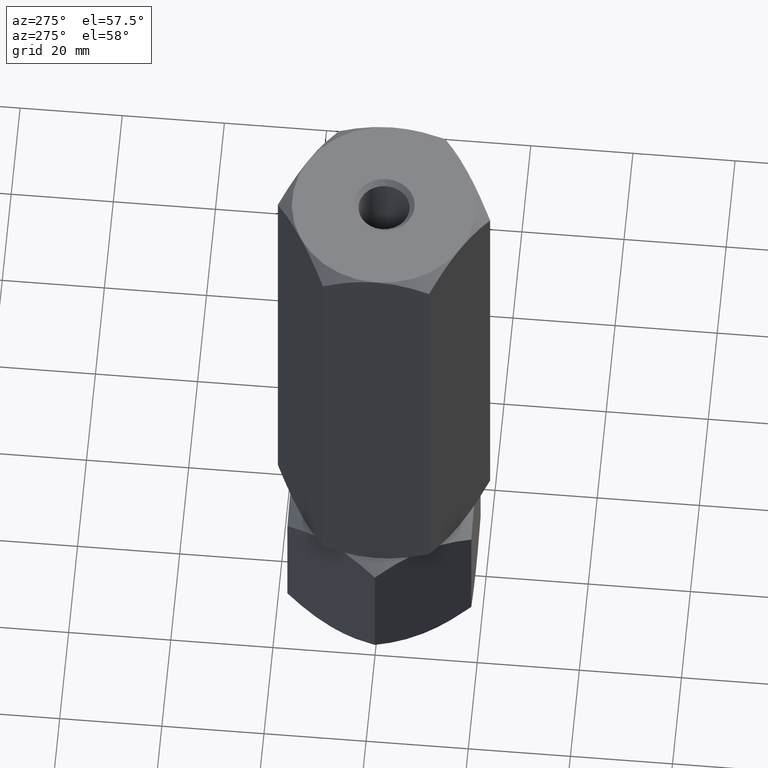
[diagram: clean part render]
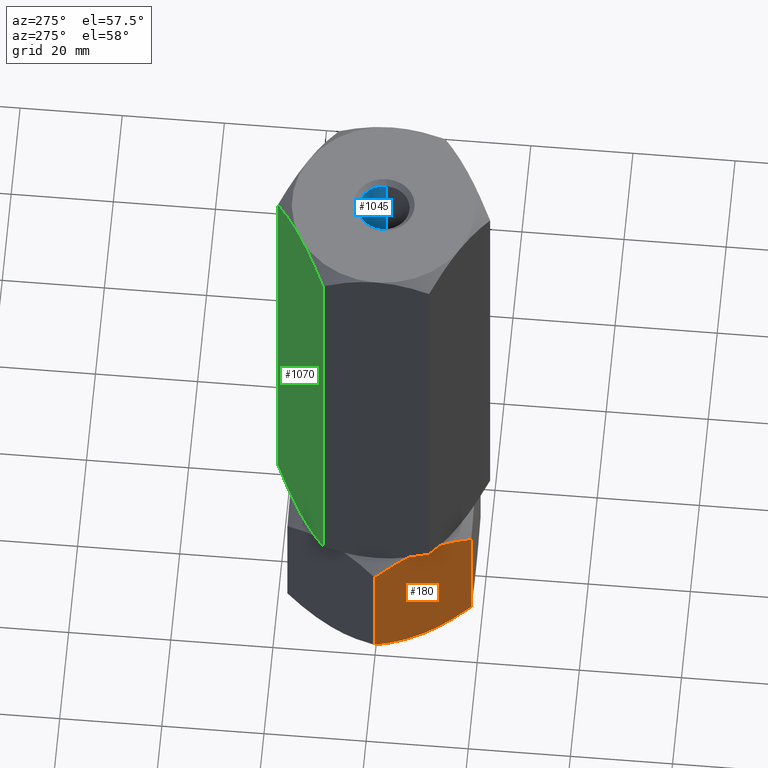
[diagram: same view with three faces highlighted in distinct colors, each labeled with its STEP entity id]
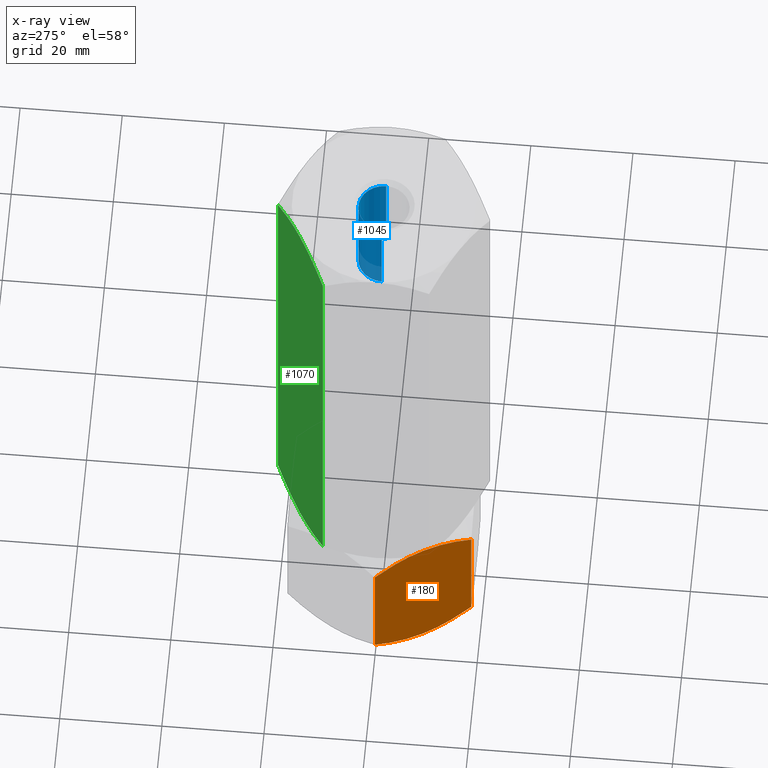
[diagram: x-ray of the same camera — body ghosted, the three highlighted faces saturated]
A machine part, auxiliary view with three faces highlighted in distinct colors.
The next image is the same camera in x-ray (body ghosted, the three faces saturated) — at least one of them is partly hidden behind the body in this view.
Their STEP definitions:

[orange] entity #180 — the highlighted planar face has unit normal (0.866, 0.5, -0).
#16 = ORIENTED_EDGE ( 'NONE', *, *, #976, .F. ) ;
#80 = CARTESIAN_POINT ( 'NONE',  ( -13.77442836864821629, -12.14199022028320307, 0.3405631022552708664 ) ) ;
#129 = CARTESIAN_POINT ( 'NONE',  ( -10.39230484541326227, -18.00000000000000355, 30.00000000000000000 ) ) ;
#180 = ADVANCED_FACE ( 'NONE', ( #1040 ), #1832, .F. ) ;
#273 = CARTESIAN_POINT ( 'NONE',  ( -20.78460969082652809, -3.512511347539742526E-15, 30.00000000000000000 ) ) ;
#277 = CARTESIAN_POINT ( 'NONE',  ( -10.39230484541326405, -18.00000000000000355, 27.21539030917347901 ) ) ;
#303 = CARTESIAN_POINT ( 'NONE',  ( -20.78460969082652809, -3.746502714695151746E-15, 27.21539030917348256 ) ) ;
#324 = ORIENTED_EDGE ( 'NONE', *, *, #823, .F. ) ;
#364 = CARTESIAN_POINT ( 'NONE',  ( -12.04041001437222214, -15.14539811114618750, 1.277383077889871377 ) ) ;
#395 = CARTESIAN_POINT ( 'NONE',  ( -12.04393988858690356, -15.13928418966203715, 28.72742529849575277 ) ) ;
#398 = EDGE_LOOP ( 'NONE', ( #1329, #576, #1662, #324, #16, #649 ) ) ;
#417 = CARTESIAN_POINT ( 'NONE',  ( -19.96977770663490759, -1.411330396252051367, 28.03022229336510307 ) ) ;
#445 = DIRECTION ( 'NONE',  ( -0.000000000000000000, -0.000000000000000000, -1.000000000000000000 ) ) ;
#449 = CARTESIAN_POINT ( 'NONE',  ( -15.81600583360881807, -8.605874323383771340, 30.00000000000000711 ) ) ;
#456 = B_SPLINE_CURVE_WITH_KNOTS ( 'NONE', 3,
 ( #573, #417, #740, #1993, #1518, #1215, #1848, #917, #449, #786 ),
 .UNSPECIFIED., .F., .F.,
 ( 4, 2, 2, 2, 4 ),
 ( 2.544307986817554504E-07, 0.005386537354063076002, 0.008079678815695275074, 0.009426249546511372007, 0.01077282027732746894 ),
 .UNSPECIFIED. ) ;
#560 = CARTESIAN_POINT ( 'NONE',  ( -13.33524813246346952, -12.90267270303528235, 0.5370855558290108522 ) ) ;
#573 = CARTESIAN_POINT ( 'NONE',  ( -20.78460969082652809, -3.746502714695151746E-15, 27.21539030917348256 ) ) ;
#576 = ORIENTED_EDGE ( 'NONE', *, *, #1814, .T. ) ;
#585 = VERTEX_POINT ( 'NONE', #1028 ) ;
#602 = VERTEX_POINT ( 'NONE', #277 ) ;
#607 = AXIS2_PLACEMENT_3D ( 'NONE', #1675, #1198, #1057 ) ;
#609 = EDGE_CURVE ( 'NONE', #1064, #602, #836, .T. ) ;
#649 = ORIENTED_EDGE ( 'NONE', *, *, #609, .F. ) ;
#661 = CARTESIAN_POINT ( 'NONE',  ( -20.78460969082652809, -3.746502714695151746E-15, 2.784609690826518325 ) ) ;
#676 = CARTESIAN_POINT ( 'NONE',  ( -15.13208409062669624, -9.790461530629878339, 0.01733285647409177344 ) ) ;
#730 = LINE ( 'NONE', #273, #1468 ) ;
#740 = CARTESIAN_POINT ( 'NONE',  ( -19.13650452186756823, -2.854601888853814717, 28.72261692211012019 ) ) ;
#786 = CARTESIAN_POINT ( 'NONE',  ( -15.58845726811989607, -9.000000000000003553, 30.00000000000000000 ) ) ;
#823 = EDGE_CURVE ( 'NONE', #1831, #585, #1155, .T. ) ;
#836 = B_SPLINE_CURVE_WITH_KNOTS ( 'NONE', 3,
 ( #1348, #1357, #1365, #395, #1023, #1809 ),
 .UNSPECIFIED., .F., .F.,
 ( 4, 2, 4 ),
 ( 0.01077282027732746894, 0.01612137750481873813, 0.02146993473231000732 ),
 .UNSPECIFIED. ) ;
#844 = CARTESIAN_POINT ( 'NONE',  ( -15.36090870263097408, -9.394125676616235765, 3.509257500474566305E-15 ) ) ;
#848 = CARTESIAN_POINT ( 'NONE',  ( -17.38072716576608912, -5.895697476400523662, 0.2763959071215840724 ) ) ;
#862 = CARTESIAN_POINT ( 'NONE',  ( -10.39230484541326227, -18.00000000000000355, 2.784609690826521877 ) ) ;
#883 = B_SPLINE_CURVE_WITH_KNOTS ( 'NONE', 3,
 ( #1785, #1173, #848, #1754, #1292, #661 ),
 .UNSPECIFIED., .F., .F.,
 ( 4, 2, 4 ),
 ( 0.01077282027732746894, 0.01612137750481873466, 0.02146993473231000038 ),
 .UNSPECIFIED. ) ;
#891 = LINE ( 'NONE', #129, #1473 ) ;
#917 = CARTESIAN_POINT ( 'NONE',  ( -16.04483044561309768, -8.209538469370130542, 29.98266714352590867 ) ) ;
#976 = EDGE_CURVE ( 'NONE', #602, #1831, #891, .T. ) ;
#994 = CARTESIAN_POINT ( 'NONE',  ( -14.44719758599053527, -10.97671975407795486, 0.1387225990985785085 ) ) ;
#1023 = CARTESIAN_POINT ( 'NONE',  ( -11.20619321075668395, -16.59030399953601886, 28.02927867451694510 ) ) ;
#1028 = CARTESIAN_POINT ( 'NONE',  ( -15.58845726811989607, -9.000000000000003553, 0.000000000000000000 ) ) ;
#1040 = FACE_OUTER_BOUND ( 'NONE', #398, .T. ) ;
#1057 = DIRECTION ( 'NONE',  ( -0.5000000000000001110, 0.8660254037844385966, 0.000000000000000000 ) ) ;
#1064 = VERTEX_POINT ( 'NONE', #1442 ) ;
#1155 = B_SPLINE_CURVE_WITH_KNOTS ( 'NONE', 3,
 ( #862, #1805, #364, #560, #80, #994, #1782, #676, #844, #1504 ),
 .UNSPECIFIED., .F., .F.,
 ( 4, 2, 2, 2, 4 ),
 ( 2.544307986795061014E-07, 0.005386537354063075135, 0.008079678815695273339, 0.009426249546511372007, 0.01077282027732746894 ),
 .UNSPECIFIED. ) ;
#1173 = CARTESIAN_POINT ( 'NONE',  ( -16.49227650070744389, -7.434539168300462464, 3.445730029430492596E-15 ) ) ;
#1198 = DIRECTION ( 'NONE',  ( 0.8660254037844385966, 0.5000000000000001110, -0.000000000000000000 ) ) ;
#1215 = CARTESIAN_POINT ( 'NONE',  ( -16.72971695024925864, -7.023280245922048692, 29.86127740090142524 ) ) ;
#1282 = VERTEX_POINT ( 'NONE', #303 ) ;
#1292 = CARTESIAN_POINT ( 'NONE',  ( -19.97072132548310108, -1.409696000463990906, 1.970721325483052233 ) ) ;
#1322 = EDGE_CURVE ( 'NONE', #585, #1813, #883, .T. ) ;
#1329 = ORIENTED_EDGE ( 'NONE', *, *, #1910, .F. ) ;
#1348 = CARTESIAN_POINT ( 'NONE',  ( -15.58845726811989607, -9.000000000000003553, 30.00000000000000000 ) ) ;
#1357 = CARTESIAN_POINT ( 'NONE',  ( -14.68463803553234648, -10.56546083169953576, 30.00000000000000000 ) ) ;
#1365 = CARTESIAN_POINT ( 'NONE',  ( -13.79618737047370303, -12.10430252359948256, 29.72360409287841776 ) ) ;
#1386 = CARTESIAN_POINT ( 'NONE',  ( -10.39230484541326227, -18.00000000000000355, 2.784609690826521877 ) ) ;
#1442 = CARTESIAN_POINT ( 'NONE',  ( -15.58845726811989607, -9.000000000000003553, 30.00000000000000000 ) ) ;
#1468 = VECTOR ( 'NONE', #445, 1000.000000000000000 ) ;
#1473 = VECTOR ( 'NONE', #1520, 1000.000000000000000 ) ;
#1504 = CARTESIAN_POINT ( 'NONE',  ( -15.58845726811989607, -9.000000000000003553, 0.000000000000000000 ) ) ;
#1518 = CARTESIAN_POINT ( 'NONE',  ( -17.40248616759157230, -5.858009779716804033, 29.65943689774473313 ) ) ;
#1520 = DIRECTION ( 'NONE',  ( -0.000000000000000000, -0.000000000000000000, -1.000000000000000000 ) ) ;
#1524 = CARTESIAN_POINT ( 'NONE',  ( -20.78460969082652809, -3.746502714695151746E-15, 2.784609690826518325 ) ) ;
#1662 = ORIENTED_EDGE ( 'NONE', *, *, #1322, .F. ) ;
#1675 = CARTESIAN_POINT ( 'NONE',  ( -20.78460969082652809, -3.512511347539742526E-15, 30.00000000000000000 ) ) ;
#1754 = CARTESIAN_POINT ( 'NONE',  ( -19.13297464765288325, -2.860715810337966403, 1.272574701504241235 ) ) ;
#1782 = CARTESIAN_POINT ( 'NONE',  ( -14.67378923359658316, -10.58425150785354774, 0.08694689011815660840 ) ) ;
#1785 = CARTESIAN_POINT ( 'NONE',  ( -15.58845726811989607, -9.000000000000003553, 0.000000000000000000 ) ) ;
#1805 = CARTESIAN_POINT ( 'NONE',  ( -11.20713682960488100, -16.58866960374795951, 1.969777706634903591 ) ) ;
#1809 = CARTESIAN_POINT ( 'NONE',  ( -10.39230484541326405, -18.00000000000000355, 27.21539030917347901 ) ) ;
#1813 = VERTEX_POINT ( 'NONE', #1524 ) ;
#1814 = EDGE_CURVE ( 'NONE', #1282, #1813, #730, .T. ) ;
#1831 = VERTEX_POINT ( 'NONE', #1386 ) ;
#1832 = PLANE ( 'NONE',  #607 ) ;
#1848 = CARTESIAN_POINT ( 'NONE',  ( -16.50312530264320543, -7.415748492146458481, 29.91305310988184374 ) ) ;
#1910 = EDGE_CURVE ( 'NONE', #1282, #1064, #456, .T. ) ;
#1993 = CARTESIAN_POINT ( 'NONE',  ( -17.84166640377631552, -5.097327296964724752, 29.46291444417098404 ) ) ;

[blue] entity #1045 — the highlighted cylindrical surface (edge-blend (fillet) strip) has radius 5 mm, axis along (-0, -0, 1).
#11 = LINE ( 'NONE', #35, #1280 ) ;
#35 = CARTESIAN_POINT ( 'NONE',  ( -5.000000000000000000, 6.123233995736766282E-16, 110.0000000000000000 ) ) ;
#136 = CARTESIAN_POINT ( 'NONE',  ( 0.000000000000000000, 0.000000000000000000, 129.0000000000000000 ) ) ;
#261 = VERTEX_POINT ( 'NONE', #642 ) ;
#329 = DIRECTION ( 'NONE',  ( 0.000000000000000000, 0.000000000000000000, 1.000000000000000000 ) ) ;
#399 = EDGE_CURVE ( 'NONE', #1720, #847, #1371, .T. ) ;
#516 = ORIENTED_EDGE ( 'NONE', *, *, #1989, .F. ) ;
#556 = EDGE_CURVE ( 'NONE', #1946, #1720, #867, .T. ) ;
#642 = CARTESIAN_POINT ( 'NONE',  ( -5.000000000000000000, 6.123233995736766282E-16, 110.0000000000000000 ) ) ;
#655 = CARTESIAN_POINT ( 'NONE',  ( 0.000000000000000000, 0.000000000000000000, 110.0000000000000000 ) ) ;
#682 = DIRECTION ( 'NONE',  ( 1.000000000000000000, 0.000000000000000000, 0.000000000000000000 ) ) ;
#761 = DIRECTION ( 'NONE',  ( 1.000000000000000000, 0.000000000000000000, 0.000000000000000000 ) ) ;
#847 = VERTEX_POINT ( 'NONE', #1343 ) ;
#859 = DIRECTION ( 'NONE',  ( 0.000000000000000000, 0.000000000000000000, 1.000000000000000000 ) ) ;
#867 = LINE ( 'NONE', #894, #1632 ) ;
#894 = CARTESIAN_POINT ( 'NONE',  ( 5.000000000000000000, 0.000000000000000000, 110.0000000000000000 ) ) ;
#930 = CYLINDRICAL_SURFACE ( 'NONE', #1208, 5.000000000000000000 ) ;
#952 = DIRECTION ( 'NONE',  ( -0.000000000000000000, -0.000000000000000000, 1.000000000000000000 ) ) ;
#955 = EDGE_LOOP ( 'NONE', ( #1906, #516, #1296, #1022 ) ) ;
#1022 = ORIENTED_EDGE ( 'NONE', *, *, #399, .T. ) ;
#1033 = EDGE_CURVE ( 'NONE', #261, #847, #11, .T. ) ;
#1045 = ADVANCED_FACE ( 'NONE', ( #1589 ), #930, .F. ) ;
#1096 = AXIS2_PLACEMENT_3D ( 'NONE', #2005, #329, #761 ) ;
#1134 = AXIS2_PLACEMENT_3D ( 'NONE', #136, #859, #682 ) ;
#1206 = DIRECTION ( 'NONE',  ( -0.000000000000000000, -0.000000000000000000, 1.000000000000000000 ) ) ;
#1208 = AXIS2_PLACEMENT_3D ( 'NONE', #655, #1264, #1880 ) ;
#1264 = DIRECTION ( 'NONE',  ( -0.000000000000000000, -0.000000000000000000, 1.000000000000000000 ) ) ;
#1280 = VECTOR ( 'NONE', #952, 1000.000000000000000 ) ;
#1296 = ORIENTED_EDGE ( 'NONE', *, *, #556, .T. ) ;
#1343 = CARTESIAN_POINT ( 'NONE',  ( -5.000000000000000000, 6.123233995736766282E-16, 129.0000000000000000 ) ) ;
#1371 = CIRCLE ( 'NONE', #1134, 5.000000000000000000 ) ;
#1500 = CIRCLE ( 'NONE', #1096, 5.000000000000000000 ) ;
#1589 = FACE_OUTER_BOUND ( 'NONE', #955, .T. ) ;
#1607 = CARTESIAN_POINT ( 'NONE',  ( 5.000000000000000000, 0.000000000000000000, 129.0000000000000000 ) ) ;
#1632 = VECTOR ( 'NONE', #1206, 1000.000000000000000 ) ;
#1693 = CARTESIAN_POINT ( 'NONE',  ( 5.000000000000000000, 0.000000000000000000, 110.0000000000000000 ) ) ;
#1720 = VERTEX_POINT ( 'NONE', #1607 ) ;
#1880 = DIRECTION ( 'NONE',  ( 1.000000000000000000, 0.000000000000000000, 0.000000000000000000 ) ) ;
#1906 = ORIENTED_EDGE ( 'NONE', *, *, #1033, .F. ) ;
#1946 = VERTEX_POINT ( 'NONE', #1693 ) ;
#1989 = EDGE_CURVE ( 'NONE', #1946, #261, #1500, .T. ) ;
#2005 = CARTESIAN_POINT ( 'NONE',  ( 0.000000000000000000, 0.000000000000000000, 110.0000000000000000 ) ) ;

[green] entity #1070 — the highlighted planar face has unit normal (0.5, -0.866, 0).
#33 = CARTESIAN_POINT ( 'NONE',  ( -8.209538469370118108, 16.04483044561310479, 129.9826671435258447 ) ) ;
#60 = DIRECTION ( 'NONE',  ( -0.000000000000000000, -0.000000000000000000, -1.000000000000000000 ) ) ;
#77 = CARTESIAN_POINT ( 'NONE',  ( -18.00000000000000355, 10.39230484541327293, 127.2153903091734719 ) ) ;
#94 = ORIENTED_EDGE ( 'NONE', *, *, #1200, .F. ) ;
#135 = CARTESIAN_POINT ( 'NONE',  ( -10.97671975407795486, 14.44719758599054771, 30.13872259909858187 ) ) ;
#152 = CARTESIAN_POINT ( 'NONE',  ( -8.999999999999998224, 15.58845726811990318, 30.00000000000000000 ) ) ;
#186 = ORIENTED_EDGE ( 'NONE', *, *, #863, .T. ) ;
#226 = LINE ( 'NONE', #985, #678 ) ;
#341 = FACE_OUTER_BOUND ( 'NONE', #1454, .T. ) ;
#362 = B_SPLINE_CURVE_WITH_KNOTS ( 'NONE', 3,
 ( #606, #1574, #793, #1731, #481, #135, #1711, #957, #1586, #459 ),
 .UNSPECIFIED., .F., .F.,
 ( 4, 2, 2, 2, 4 ),
 ( 2.544307986796311447E-07, 0.005386537354063073400, 0.008079678815695271604, 0.009426249546511370273, 0.01077282027732746894 ),
 .UNSPECIFIED. ) ;
#372 = CARTESIAN_POINT ( 'NONE',  ( -8.999999999999998224, 15.58845726811990318, 130.0000000000000000 ) ) ;
#459 = CARTESIAN_POINT ( 'NONE',  ( -8.999999999999998224, 15.58845726811990318, 30.00000000000000000 ) ) ;
#462 = EDGE_CURVE ( 'NONE', #617, #1620, #1522, .T. ) ;
#475 = DIRECTION ( 'NONE',  ( 0.8660254037844388186, 0.4999999999999997224, 0.000000000000000000 ) ) ;
#481 = CARTESIAN_POINT ( 'NONE',  ( -12.14199022028320130, 13.77442836864822695, 30.34056310225527398 ) ) ;
#498 = CARTESIAN_POINT ( 'NONE',  ( -1.925929944387235853E-30, 20.78460969082653165, 130.0000000000000000 ) ) ;
#545 = CARTESIAN_POINT ( 'NONE',  ( -7.415748492146447823, 16.50312530264321609, 129.9130531098817869 ) ) ;
#554 = VERTEX_POINT ( 'NONE', #77 ) ;
#555 = CARTESIAN_POINT ( 'NONE',  ( -5.895697476400520110, 17.38072716576610333, 30.27639590712159290 ) ) ;
#574 = EDGE_CURVE ( 'NONE', #1561, #1967, #1007, .T. ) ;
#606 = CARTESIAN_POINT ( 'NONE',  ( -18.00000000000000355, 10.39230484541327293, 32.78460969082652099 ) ) ;
#617 = VERTEX_POINT ( 'NONE', #1974 ) ;
#618 = CARTESIAN_POINT ( 'NONE',  ( -15.13928418966203360, 12.04393988858691600, 128.7274252984957172 ) ) ;
#627 = ORIENTED_EDGE ( 'NONE', *, *, #1281, .F. ) ;
#653 = CARTESIAN_POINT ( 'NONE',  ( -1.411330396252047370, 19.96977770663491469, 128.0302222933651137 ) ) ;
#671 = CARTESIAN_POINT ( 'NONE',  ( -5.097327296964720311, 17.84166640377632618, 129.4629144441710196 ) ) ;
#678 = VECTOR ( 'NONE', #60, 1000.000000000000000 ) ;
#729 = B_SPLINE_CURVE_WITH_KNOTS ( 'NONE', 3,
 ( #759, #1394, #2027, #618, #1866, #1087 ),
 .UNSPECIFIED., .F., .F.,
 ( 4, 2, 4 ),
 ( 0.01077282027732746547, 0.01612137750481872772, 0.02146993473230998997 ),
 .UNSPECIFIED. ) ;
#759 = CARTESIAN_POINT ( 'NONE',  ( -8.999999999999998224, 15.58845726811990318, 130.0000000000000000 ) ) ;
#793 = CARTESIAN_POINT ( 'NONE',  ( -15.14539811114619283, 12.04041001437223635, 31.27738307788987271 ) ) ;
#797 = DIRECTION ( 'NONE',  ( -0.000000000000000000, -0.000000000000000000, -1.000000000000000000 ) ) ;
#863 = EDGE_CURVE ( 'NONE', #617, #1967, #226, .T. ) ;
#957 = CARTESIAN_POINT ( 'NONE',  ( -9.790461530629873010, 15.13208409062669979, 30.01733285647409488 ) ) ;
#985 = CARTESIAN_POINT ( 'NONE',  ( -1.925929944387235853E-30, 20.78460969082653165, 130.0000000000000000 ) ) ;
#1007 = B_SPLINE_CURVE_WITH_KNOTS ( 'NONE', 3,
 ( #1992, #1487, #555, #1649, #1175, #1516 ),
 .UNSPECIFIED., .F., .F.,
 ( 4, 2, 4 ),
 ( 0.01077282027732746894, 0.01612137750481873119, 0.02146993473230999691 ),
 .UNSPECIFIED. ) ;
#1056 = EDGE_CURVE ( 'NONE', #554, #1710, #1276, .T. ) ;
#1070 = ADVANCED_FACE ( 'NONE', ( #341 ), #1114, .F. ) ;
#1087 = CARTESIAN_POINT ( 'NONE',  ( -18.00000000000000355, 10.39230484541327293, 127.2153903091734719 ) ) ;
#1104 = CARTESIAN_POINT ( 'NONE',  ( -18.00000000000000355, 10.39230484541327293, 130.0000000000000000 ) ) ;
#1114 = PLANE ( 'NONE',  #1350 ) ;
#1175 = CARTESIAN_POINT ( 'NONE',  ( -1.409696000463983800, 19.97072132548310819, 31.97072132548304424 ) ) ;
#1200 = EDGE_CURVE ( 'NONE', #1710, #1561, #362, .T. ) ;
#1276 = LINE ( 'NONE', #1104, #1412 ) ;
#1281 = EDGE_CURVE ( 'NONE', #1620, #554, #729, .T. ) ;
#1317 = CARTESIAN_POINT ( 'NONE',  ( -7.023280245922044251, 16.72971695024924799, 129.8612774009014004 ) ) ;
#1327 = CARTESIAN_POINT ( 'NONE',  ( 2.023902932232340556E-15, 20.78460969082653165, 127.2153903091734719 ) ) ;
#1331 = CARTESIAN_POINT ( 'NONE',  ( -18.00000000000000355, 10.39230484541327293, 32.78460969082652099 ) ) ;
#1350 = AXIS2_PLACEMENT_3D ( 'NONE', #498, #1599, #475 ) ;
#1375 = ORIENTED_EDGE ( 'NONE', *, *, #1056, .F. ) ;
#1394 = CARTESIAN_POINT ( 'NONE',  ( -10.56546083169953576, 14.68463803553235536, 129.9999999999999716 ) ) ;
#1412 = VECTOR ( 'NONE', #797, 1000.000000000000000 ) ;
#1454 = EDGE_LOOP ( 'NONE', ( #1729, #186, #2001, #94, #1375, #627 ) ) ;
#1462 = CARTESIAN_POINT ( 'NONE',  ( -8.999999999999998224, 15.58845726811990318, 130.0000000000000000 ) ) ;
#1487 = CARTESIAN_POINT ( 'NONE',  ( -7.434539168300459799, 16.49227650070745099, 30.00000000000000355 ) ) ;
#1516 = CARTESIAN_POINT ( 'NONE',  ( 8.949557825632274204E-16, 20.78460969082653165, 32.78460969082652099 ) ) ;
#1522 = B_SPLINE_CURVE_WITH_KNOTS ( 'NONE', 3,
 ( #1327, #653, #1597, #671, #1947, #1317, #545, #33, #1788, #372 ),
 .UNSPECIFIED., .F., .F.,
 ( 4, 2, 2, 2, 4 ),
 ( 2.544307986824694462E-07, 0.005386537354063072533, 0.008079678815695268135, 0.009426249546511366803, 0.01077282027732746547 ),
 .UNSPECIFIED. ) ;
#1561 = VERTEX_POINT ( 'NONE', #152 ) ;
#1574 = CARTESIAN_POINT ( 'NONE',  ( -16.58866960374795596, 11.20713682960489166, 31.96977770663490048 ) ) ;
#1586 = CARTESIAN_POINT ( 'NONE',  ( -9.394125676616232212, 15.36090870263098118, 30.00000000000001066 ) ) ;
#1597 = CARTESIAN_POINT ( 'NONE',  ( -2.854601888853809832, 19.13650452186757533, 128.7226169221101486 ) ) ;
#1599 = DIRECTION ( 'NONE',  ( 0.4999999999999997224, -0.8660254037844388186, 0.000000000000000000 ) ) ;
#1620 = VERTEX_POINT ( 'NONE', #1462 ) ;
#1649 = CARTESIAN_POINT ( 'NONE',  ( -2.860715810337959297, 19.13297464765288680, 31.27257470150424012 ) ) ;
#1710 = VERTEX_POINT ( 'NONE', #1331 ) ;
#1711 = CARTESIAN_POINT ( 'NONE',  ( -10.58425150785354418, 14.67378923359658849, 30.08694689011815981 ) ) ;
#1729 = ORIENTED_EDGE ( 'NONE', *, *, #462, .F. ) ;
#1731 = CARTESIAN_POINT ( 'NONE',  ( -12.90267270303527525, 13.33524813246348373, 30.53708555582901241 ) ) ;
#1788 = CARTESIAN_POINT ( 'NONE',  ( -8.605874323383766011, 15.81600583360882517, 129.9999999999999716 ) ) ;
#1866 = CARTESIAN_POINT ( 'NONE',  ( -16.59030399953601531, 11.20619321075669816, 128.0292786745169735 ) ) ;
#1947 = CARTESIAN_POINT ( 'NONE',  ( -5.858009779716799592, 17.40248616759158296, 129.6594368977447687 ) ) ;
#1967 = VERTEX_POINT ( 'NONE', #2040 ) ;
#1974 = CARTESIAN_POINT ( 'NONE',  ( 2.023902932232340556E-15, 20.78460969082653165, 127.2153903091734719 ) ) ;
#1992 = CARTESIAN_POINT ( 'NONE',  ( -8.999999999999998224, 15.58845726811990318, 30.00000000000000000 ) ) ;
#2001 = ORIENTED_EDGE ( 'NONE', *, *, #574, .F. ) ;
#2027 = CARTESIAN_POINT ( 'NONE',  ( -12.10430252359947900, 13.79618737047371546, 129.7236040928784746 ) ) ;
#2040 = CARTESIAN_POINT ( 'NONE',  ( 8.949557825632274204E-16, 20.78460969082653165, 32.78460969082652099 ) ) ;